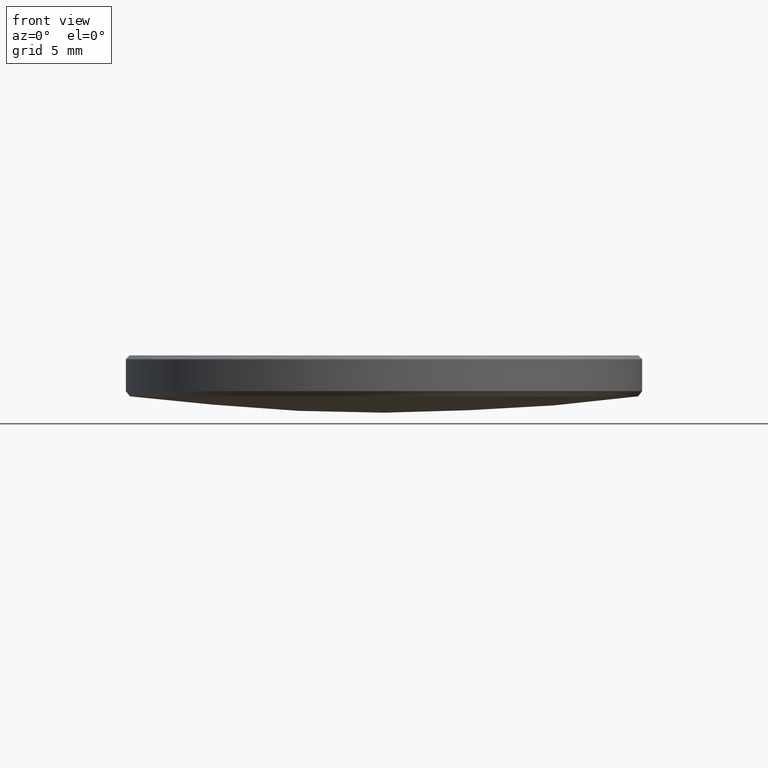
[diagram: clean part render]
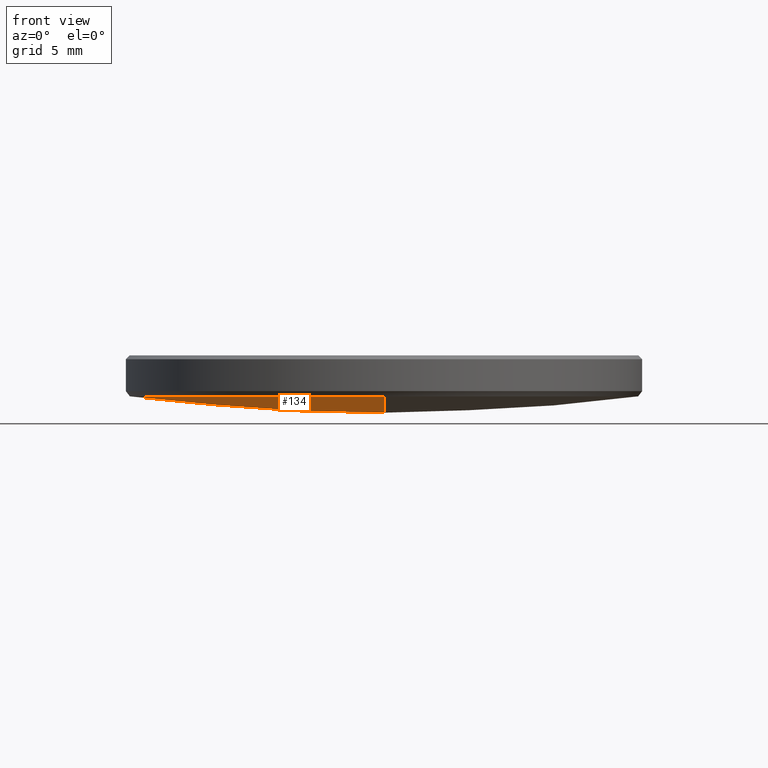
[diagram: same view with one face highlighted and labeled with its STEP entity id]
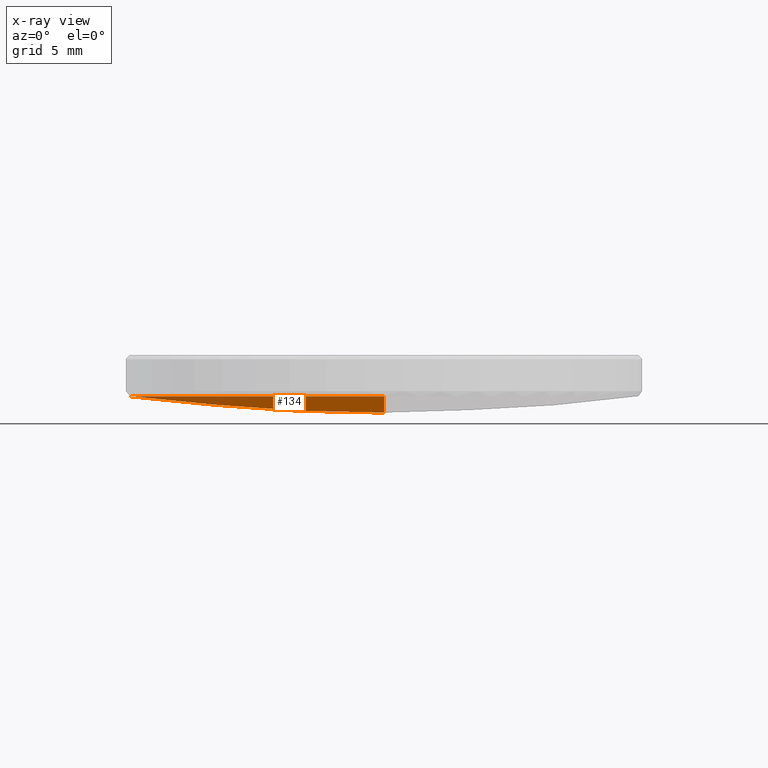
[diagram: x-ray of the same camera — body ghosted, the highlighted face saturated]
A machine part, front view. The second image highlights one B-rep face of the part: STEP entity #134.
The next image is the same camera in x-ray: the body ghosted, the highlighted face saturated — about 0% of this face is hidden behind the body in this view.
In plain terms, the highlighted spherical surface has radius 97.61 mm.
Its self-contained STEP definition (entity closure, byte-faithful):
#3 = DIRECTION ( 'NONE',  ( 1.000000000000000000, 0.000000000000000000, 0.000000000000000000 ) ) ;
#4 = CARTESIAN_POINT ( 'NONE',  ( 0.000000000000000000, 0.000000000000000000, 100.7802774329563533 ) ) ;
#27 = CARTESIAN_POINT ( 'NONE',  ( 0.000000000000000000, 0.000000000000000000, 100.7802774329563533 ) ) ;
#52 = DIRECTION ( 'NONE',  ( -1.000000000000000000, 0.000000000000000000, 0.000000000000000000 ) ) ;
#55 = FACE_OUTER_BOUND ( 'NONE', #170, .T. ) ;
#68 = VERTEX_POINT ( 'NONE', #245 ) ;
#72 = VERTEX_POINT ( 'NONE', #203 ) ;
#73 = CIRCLE ( 'NONE', #288, 97.60999999999999943 ) ;
#79 = CIRCLE ( 'NONE', #263, 12.50187621270549165 ) ;
#82 = CARTESIAN_POINT ( 'NONE',  ( -1.531038268722624004E-15, -12.50187621270551297, 3.974207420987641015 ) ) ;
#94 = VERTEX_POINT ( 'NONE', #164 ) ;
#100 = VERTEX_POINT ( 'NONE', #82 ) ;
#101 = CIRCLE ( 'NONE', #225, 12.50187621270549165 ) ;
#114 = EDGE_CURVE ( 'NONE', #68, #72, #101, .T. ) ;
#115 = DIRECTION ( 'NONE',  ( 1.000000000000000000, -0.000000000000000000, 0.000000000000000000 ) ) ;
#116 = ORIENTED_EDGE ( 'NONE', *, *, #278, .F. ) ;
#121 = DIRECTION ( 'NONE',  ( 0.000000000000000000, 0.000000000000000000, -1.000000000000000000 ) ) ;
#122 = ORIENTED_EDGE ( 'NONE', *, *, #138, .T. ) ;
#132 = CARTESIAN_POINT ( 'NONE',  ( 0.000000000000000000, 0.000000000000000000, 3.974207420987641015 ) ) ;
#134 = ADVANCED_FACE ( 'NONE', ( #55 ), #185, .T. ) ;
#138 = EDGE_CURVE ( 'NONE', #94, #100, #73, .T. ) ;
#155 = ORIENTED_EDGE ( 'NONE', *, *, #254, .T. ) ;
#161 = DIRECTION ( 'NONE',  ( 0.000000000000000000, 1.000000000000000000, 0.000000000000000000 ) ) ;
#164 = CARTESIAN_POINT ( 'NONE',  ( 0.000000000000000000, 5.976888703238657615E-15, 3.170277432956350339 ) ) ;
#168 = DIRECTION ( 'NONE',  ( 0.000000000000000000, 0.000000000000000000, -1.000000000000000000 ) ) ;
#170 = EDGE_LOOP ( 'NONE', ( #116, #122, #155, #224 ) ) ;
#180 = DIRECTION ( 'NONE',  ( -1.000000000000000000, 1.224646799147353207E-16, 0.000000000000000000 ) ) ;
#183 = DIRECTION ( 'NONE',  ( 0.000000000000000000, 0.000000000000000000, -1.000000000000000000 ) ) ;
#185 = SPHERICAL_SURFACE ( 'NONE', #214, 97.60999999999999943 ) ;
#191 = CIRCLE ( 'NONE', #296, 97.60999999999999943 ) ;
#203 = CARTESIAN_POINT ( 'NONE',  ( 0.000000000000000000, 12.50187621270551297, 3.974207420987641015 ) ) ;
#207 = CARTESIAN_POINT ( 'NONE',  ( 0.000000000000000000, 0.000000000000000000, 100.7802774329563533 ) ) ;
#214 = AXIS2_PLACEMENT_3D ( 'NONE', #27, #52, #161 ) ;
#224 = ORIENTED_EDGE ( 'NONE', *, *, #114, .T. ) ;
#225 = AXIS2_PLACEMENT_3D ( 'NONE', #132, #183, #332 ) ;
#245 = CARTESIAN_POINT ( 'NONE',  ( -12.50187621270549165, 1.543169851819880035E-15, 3.974207420987641015 ) ) ;
#254 = EDGE_CURVE ( 'NONE', #100, #68, #79, .T. ) ;
#258 = DIRECTION ( 'NONE',  ( -1.224646799147353207E-16, -1.000000000000000000, 0.000000000000000000 ) ) ;
#263 = AXIS2_PLACEMENT_3D ( 'NONE', #316, #168, #3 ) ;
#278 = EDGE_CURVE ( 'NONE', #94, #72, #191, .T. ) ;
#288 = AXIS2_PLACEMENT_3D ( 'NONE', #207, #180, #258 ) ;
#296 = AXIS2_PLACEMENT_3D ( 'NONE', #4, #115, #121 ) ;
#316 = CARTESIAN_POINT ( 'NONE',  ( 0.000000000000000000, 0.000000000000000000, 3.974207420987641015 ) ) ;
#332 = DIRECTION ( 'NONE',  ( 1.000000000000000000, 0.000000000000000000, 0.000000000000000000 ) ) ;